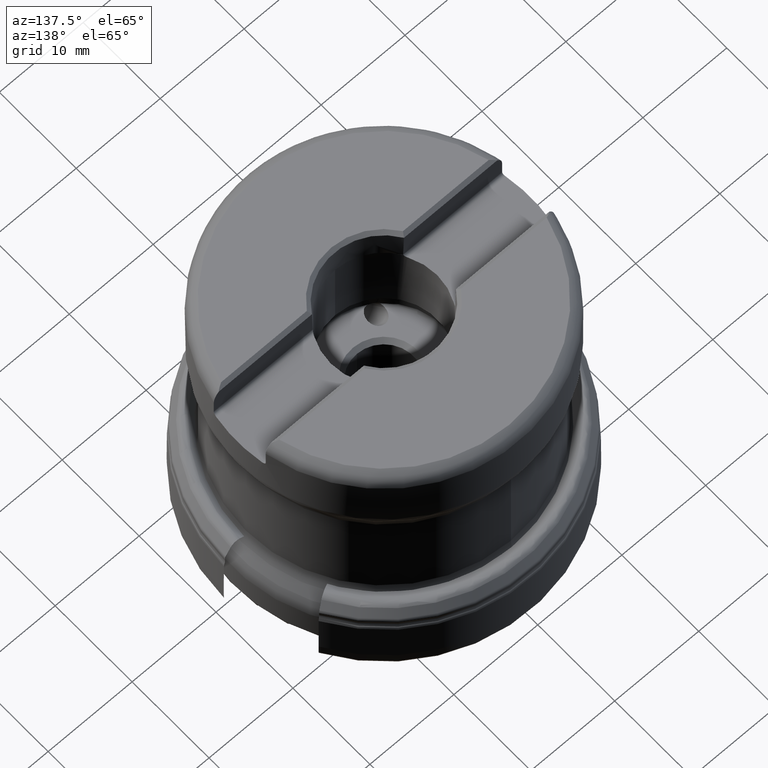
[diagram: clean part render]
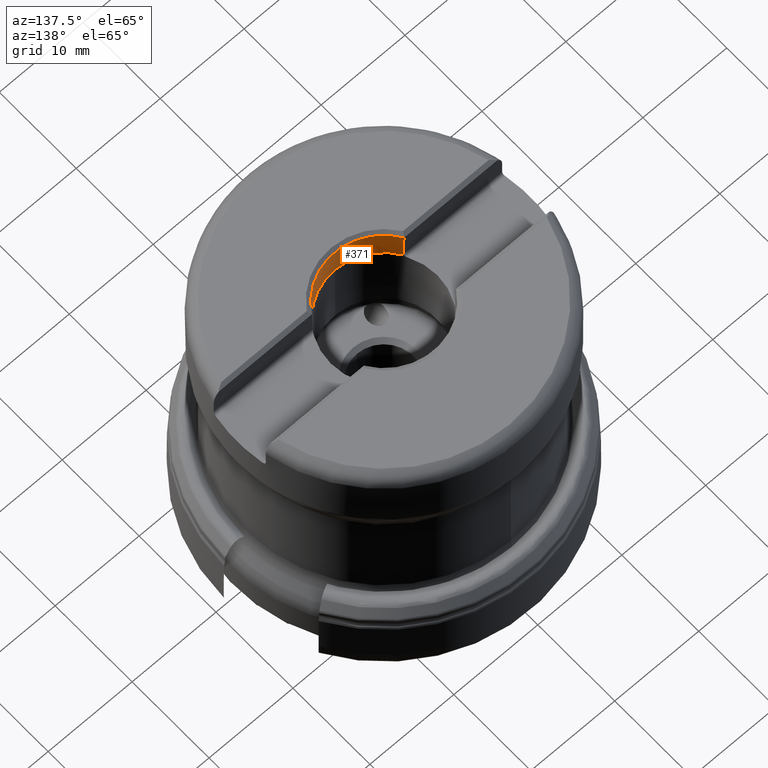
[diagram: same view with one face highlighted and labeled with its STEP entity id]
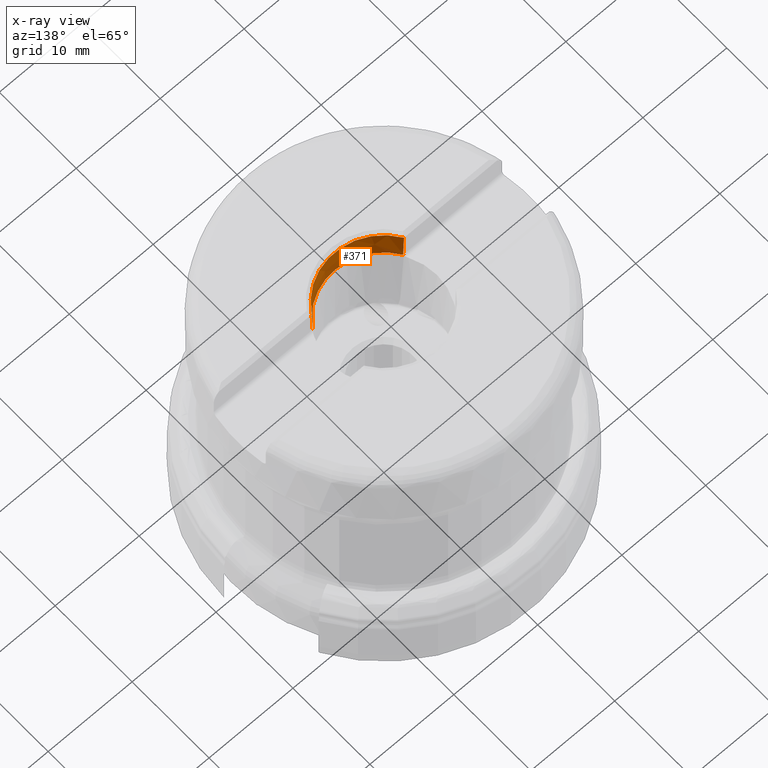
[diagram: x-ray of the same camera — body ghosted, the highlighted face saturated]
A machine part, auxiliary view. The second image highlights one B-rep face of the part: STEP entity #371.
The next image is the same camera in x-ray: the body ghosted, the highlighted face saturated — about 0% of this face is hidden behind the body in this view.
In plain terms, the highlighted conical surface has half-angle 1.5 deg.
Its self-contained STEP definition (entity closure, byte-faithful):
#254=CONICAL_SURFACE('',#1775,6.45474368627675,1.49999999999999);
#324=ELLIPSE('',#1718,8.98734457774616,6.35283309827748);
#325=ELLIPSE('',#1723,8.98734457774616,6.35283309827748);
#371=ADVANCED_FACE('',(#482),#254,.F.);
#482=FACE_OUTER_BOUND('',#556,.T.);
#556=EDGE_LOOP('',(#813,#814,#815,#816,#817,#818,#819,#820));
#813=ORIENTED_EDGE('',*,*,#1330,.T.);
#814=ORIENTED_EDGE('',*,*,#1267,.T.);
#815=ORIENTED_EDGE('',*,*,#1265,.T.);
#816=ORIENTED_EDGE('',*,*,#1262,.T.);
#817=ORIENTED_EDGE('',*,*,#1331,.T.);
#818=ORIENTED_EDGE('',*,*,#1317,.F.);
#819=ORIENTED_EDGE('',*,*,#1333,.T.);
#820=ORIENTED_EDGE('',*,*,#1324,.F.);
#1096=VERTEX_POINT('',#2829);
#1097=VERTEX_POINT('',#2832);
#1099=VERTEX_POINT('',#2840);
#1100=VERTEX_POINT('',#2846);
#1136=VERTEX_POINT('',#3161);
#1137=VERTEX_POINT('',#3169);
#1140=VERTEX_POINT('',#3199);
#1141=VERTEX_POINT('',#3207);
#1262=EDGE_CURVE('',#1096,#1097,#324,.T.);
#1265=EDGE_CURVE('',#1099,#1096,#1462,.T.);
#1267=EDGE_CURVE('',#1100,#1099,#325,.T.);
#1317=EDGE_CURVE('',#1136,#1137,#1588,.T.);
#1324=EDGE_CURVE('',#1140,#1141,#1591,.T.);
#1330=EDGE_CURVE('',#1140,#1100,#1595,.T.);
#1331=EDGE_CURVE('',#1097,#1137,#1596,.T.);
#1333=EDGE_CURVE('',#1136,#1141,#1485,.T.);
#1462=CIRCLE('',#1721,6.43903751729202);
#1485=CIRCLE('',#1774,6.35);
#1588=B_SPLINE_CURVE_WITH_KNOTS('',3,(#3162,#3163,#3164,#3165,#3166,#3167,
#3168),.UNSPECIFIED.,.F.,.F.,(4,3,4),(0.,0.166591357031257,1.),
 .UNSPECIFIED.);
#1591=B_SPLINE_CURVE_WITH_KNOTS('',3,(#3200,#3201,#3202,#3203,#3204,#3205,
#3206),.UNSPECIFIED.,.F.,.F.,(4,3,4),(0.,0.166697091380378,1.),
 .UNSPECIFIED.);
#1595=B_SPLINE_CURVE_WITH_KNOTS('',3,(#3243,#3244,#3245,#3246,#3247,#3248,
#3249),.UNSPECIFIED.,.F.,.F.,(4,3,4),(0.,0.586038224825363,1.),
 .UNSPECIFIED.);
#1596=B_SPLINE_CURVE_WITH_KNOTS('',3,(#3251,#3252,#3253,#3254,#3255,#3256,
#3257),.UNSPECIFIED.,.F.,.F.,(4,3,4),(0.,0.41396177517464,1.),
 .UNSPECIFIED.);
#1718=AXIS2_PLACEMENT_3D('',#2833,#1935,#1936);
#1721=AXIS2_PLACEMENT_3D('',#2842,#1941,#1942);
#1723=AXIS2_PLACEMENT_3D('',#2845,#1946,#1947);
#1774=AXIS2_PLACEMENT_3D('',#3261,#2065,#2066);
#1775=AXIS2_PLACEMENT_3D('',#3262,#2067,#2068);
#1935=DIRECTION('',(0.,0.707106781186551,0.707106781186544));
#1936=DIRECTION('',(0.,-0.707106781186544,0.707106781186551));
#1941=DIRECTION('',(0.,1.17145536458252E-15,1.));
#1942=DIRECTION('',(0.,1.,-1.07762905329762E-15));
#1946=DIRECTION('',(0.,0.707106781186551,0.707106781186544));
#1947=DIRECTION('',(0.,-0.707106781186544,0.707106781186551));
#2065=DIRECTION('',(0.,-1.17145536458252E-15,-1.));
#2066=DIRECTION('',(0.,-1.,1.09273919746571E-15));
#2067=DIRECTION('',(0.,1.17145536458252E-15,1.));
#2068=DIRECTION('',(0.,-1.,2.12584328462661E-15));
#2829=CARTESIAN_POINT('',(5.48353820748719,-3.37520560501463,34.5252056050147));
#2832=CARTESIAN_POINT('',(5.48365843339314,-3.37499999999996,34.525));
#2833=CARTESIAN_POINT('',(0.,-0.166411853548593,31.3164118535486));
#2840=CARTESIAN_POINT('',(-5.48353820748719,-3.37520560501463,34.5252056050147));
#2842=CARTESIAN_POINT('',(0.,4.04447373193091E-14,34.5252056050147));
#2845=CARTESIAN_POINT('',(0.,-0.166411853548593,31.3164118535486));
#2846=CARTESIAN_POINT('',(-5.48365843339314,-3.37499999999996,34.525));
#3161=CARTESIAN_POINT('',(5.39371471837129,-3.35117017425624,31.125));
#3162=CARTESIAN_POINT('',(5.39371471837129,-3.35117017425624,31.125));
#3163=CARTESIAN_POINT('',(5.39231606449984,-3.35377940992307,31.1322170340843));
#3164=CARTESIAN_POINT('',(5.39104159601086,-3.35618986816,31.1395346632188));
#3165=CARTESIAN_POINT('',(5.38989866243633,-3.3583903938372,31.1469306968842));
#3166=CARTESIAN_POINT('',(5.38425888661956,-3.36924883021094,31.1834262314765));
#3167=CARTESIAN_POINT('',(5.3818505550467,-3.37499999999996,31.2225263365309));
#3168=CARTESIAN_POINT('',(5.38303966235505,-3.37499999999996,31.261));
#3169=CARTESIAN_POINT('',(5.38303966235505,-3.37499999999996,31.261));
#3199=CARTESIAN_POINT('',(-5.38303966235505,-3.37499999999996,31.261));
#3200=CARTESIAN_POINT('',(-5.38303966235505,-3.37499999999996,31.261));
#3201=CARTESIAN_POINT('',(-5.38279848676275,-3.37499999999996,31.2531967441375));
#3202=CARTESIAN_POINT('',(-5.38270042785505,-3.37477130958237,31.2453844011207));
#3203=CARTESIAN_POINT('',(-5.38274597049761,-3.37431443193173,31.2375909322908));
#3204=CARTESIAN_POINT('',(-5.38297049960749,-3.37206198616956,31.1991684666399));
#3205=CARTESIAN_POINT('',(-5.38681362607446,-3.36404439319528,31.1606095381008));
#3206=CARTESIAN_POINT('',(-5.3937147183713,-3.35117017425624,31.125));
#3207=CARTESIAN_POINT('',(-5.3937147183713,-3.35117017425624,31.125));
#3243=CARTESIAN_POINT('',(-5.38303966235505,-3.37499999999996,31.261));
#3244=CARTESIAN_POINT('',(-5.40274624282213,-3.37499999999996,31.8986080103927));
#3245=CARTESIAN_POINT('',(-5.42242232119281,-3.37499999999996,32.5362169641989));
#3246=CARTESIAN_POINT('',(-5.44206887898405,-3.37499999999996,33.1738268268874));
#3247=CARTESIAN_POINT('',(-5.45594668360405,-3.37499999999996,33.6242174343513));
#3248=CARTESIAN_POINT('',(-5.46980975756974,-3.37499999999996,34.0746084959386));
#3249=CARTESIAN_POINT('',(-5.48365843339314,-3.37499999999996,34.525));
#3251=CARTESIAN_POINT('',(5.48365843339314,-3.37499999999996,34.525));
#3252=CARTESIAN_POINT('',(5.46980975756974,-3.37499999999996,34.0746084959386));
#3253=CARTESIAN_POINT('',(5.45594668360406,-3.37499999999996,33.6242174343513));
#3254=CARTESIAN_POINT('',(5.44206887898406,-3.37499999999996,33.1738268268874));
#3255=CARTESIAN_POINT('',(5.42242232119281,-3.37499999999996,32.5362169641989));
#3256=CARTESIAN_POINT('',(5.40274624282213,-3.37499999999996,31.8986080103927));
#3257=CARTESIAN_POINT('',(5.38303966235505,-3.37499999999996,31.261));
#3261=CARTESIAN_POINT('',(0.,3.64615482226311E-14,31.125));
#3262=CARTESIAN_POINT('',(0.,4.11473696809612E-14,35.125));